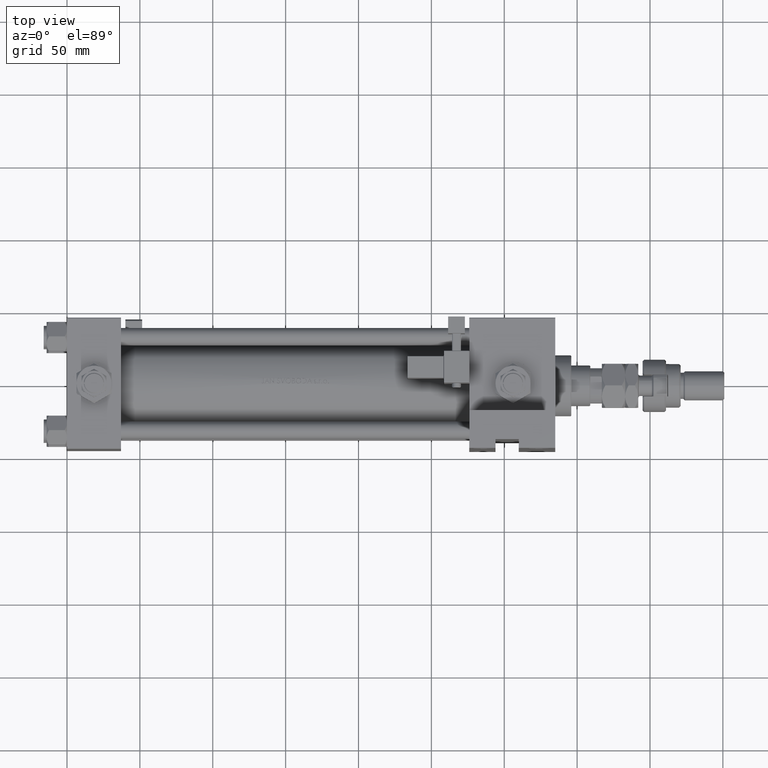
[diagram: clean part render]
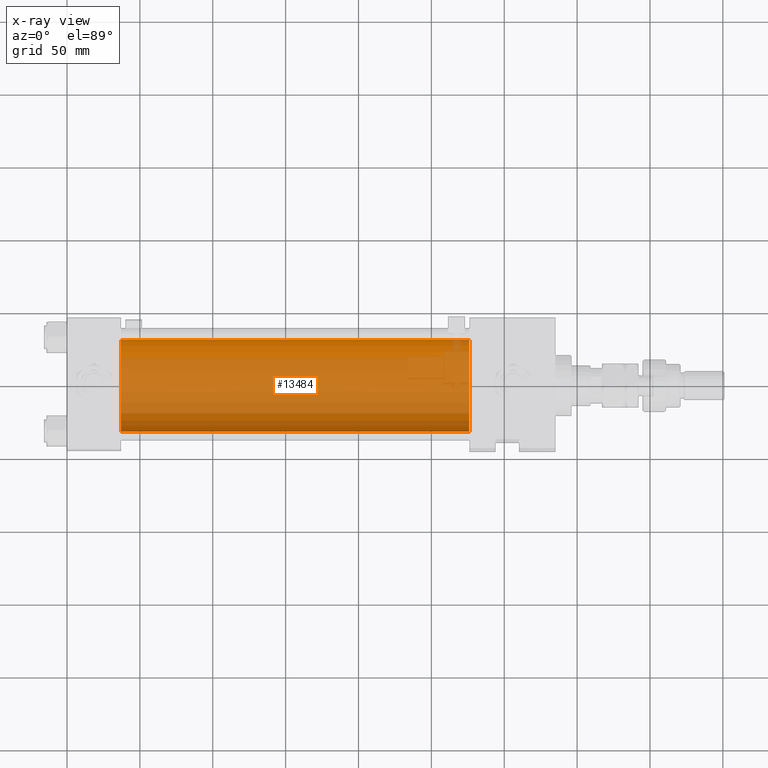
[diagram: x-ray — body ghosted, one internal face saturated and labeled with its STEP entity id]
A machine part, top view, then the same camera in x-ray: the body is ghosted and one INTERNAL B-rep face — a face not visible from any outside direction — is saturated and labeled: STEP entity #13484.
In plain terms, the highlighted cylindrical surface (partial cylindrical patch) has radius 31.5 mm, axis along (-1, -0, 0).
Its self-contained STEP definition (entity closure, byte-faithful):
#789 = CIRCLE ( 'NONE', #14975, 31.50000000000000000 ) ;
#2277 = VECTOR ( 'NONE', #26767, 1000.000000000000000 ) ;
#2449 = CARTESIAN_POINT ( 'NONE',  ( 37.00000000000000000, 0.000000000000000000, 30.49999999999999289 ) ) ;
#4890 = CARTESIAN_POINT ( 'NONE',  ( 275.9999999999999432, 3.857637417314161900E-15, -32.50000000000000711 ) ) ;
#6061 = VERTEX_POINT ( 'NONE', #48112 ) ;
#6339 = CARTESIAN_POINT ( 'NONE',  ( 275.9999999999999432, 0.000000000000000000, -1.000000000000007772 ) ) ;
#10005 = CARTESIAN_POINT ( 'NONE',  ( 275.9999999999999432, 3.857637417314161900E-15, -32.50000000000000711 ) ) ;
#11103 = ORIENTED_EDGE ( 'NONE', *, *, #38927, .T. ) ;
#12563 = DIRECTION ( 'NONE',  ( 0.000000000000000000, 0.000000000000000000, -1.000000000000000000 ) ) ;
#13484 = ADVANCED_FACE ( 'NONE', ( #44908 ), #29137, .F. ) ;
#14975 = AXIS2_PLACEMENT_3D ( 'NONE', #28905, #17532, #12563 ) ;
#15212 = CARTESIAN_POINT ( 'NONE',  ( 275.9999999999999432, 0.000000000000000000, 30.49999999999999289 ) ) ;
#16108 = ORIENTED_EDGE ( 'NONE', *, *, #52706, .F. ) ;
#16592 = VERTEX_POINT ( 'NONE', #47665 ) ;
#17532 = DIRECTION ( 'NONE',  ( 1.000000000000000000, 0.000000000000000000, 0.000000000000000000 ) ) ;
#19053 = EDGE_CURVE ( 'NONE', #39738, #6061, #43365, .T. ) ;
#20306 = DIRECTION ( 'NONE',  ( -1.000000000000000000, -0.000000000000000000, -0.000000000000000000 ) ) ;
#23322 = AXIS2_PLACEMENT_3D ( 'NONE', #45996, #20306, #54044 ) ;
#26767 = DIRECTION ( 'NONE',  ( -1.000000000000000000, -0.000000000000000000, -0.000000000000000000 ) ) ;
#28793 = ORIENTED_EDGE ( 'NONE', *, *, #19053, .F. ) ;
#28905 = CARTESIAN_POINT ( 'NONE',  ( 37.00000000000000000, 0.000000000000000000, -1.000000000000007772 ) ) ;
#29137 = CYLINDRICAL_SURFACE ( 'NONE', #23322, 31.50000000000000000 ) ;
#29367 = EDGE_LOOP ( 'NONE', ( #28793, #11103, #29634, #16108 ) ) ;
#29634 = ORIENTED_EDGE ( 'NONE', *, *, #50705, .T. ) ;
#38927 = EDGE_CURVE ( 'NONE', #39738, #16592, #47179, .T. ) ;
#39738 = VERTEX_POINT ( 'NONE', #10005 ) ;
#43365 = LINE ( 'NONE', #4890, #2277 ) ;
#44534 = AXIS2_PLACEMENT_3D ( 'NONE', #6339, #44813, #53402 ) ;
#44813 = DIRECTION ( 'NONE',  ( 1.000000000000000000, 0.000000000000000000, 0.000000000000000000 ) ) ;
#44908 = FACE_OUTER_BOUND ( 'NONE', #29367, .T. ) ;
#45086 = DIRECTION ( 'NONE',  ( -1.000000000000000000, -0.000000000000000000, -0.000000000000000000 ) ) ;
#45996 = CARTESIAN_POINT ( 'NONE',  ( 275.9999999999999432, 0.000000000000000000, -1.000000000000007772 ) ) ;
#47179 = CIRCLE ( 'NONE', #44534, 31.50000000000000000 ) ;
#47344 = VERTEX_POINT ( 'NONE', #2449 ) ;
#47665 = CARTESIAN_POINT ( 'NONE',  ( 275.9999999999999432, 0.000000000000000000, 30.49999999999999289 ) ) ;
#48112 = CARTESIAN_POINT ( 'NONE',  ( 37.00000000000000000, 3.857637417314161900E-15, -32.50000000000000711 ) ) ;
#48969 = LINE ( 'NONE', #15212, #51084 ) ;
#50705 = EDGE_CURVE ( 'NONE', #16592, #47344, #48969, .T. ) ;
#51084 = VECTOR ( 'NONE', #45086, 1000.000000000000000 ) ;
#52706 = EDGE_CURVE ( 'NONE', #6061, #47344, #789, .T. ) ;
#53402 = DIRECTION ( 'NONE',  ( 0.000000000000000000, 0.000000000000000000, -1.000000000000000000 ) ) ;
#54044 = DIRECTION ( 'NONE',  ( 0.000000000000000000, 0.000000000000000000, 1.000000000000000000 ) ) ;